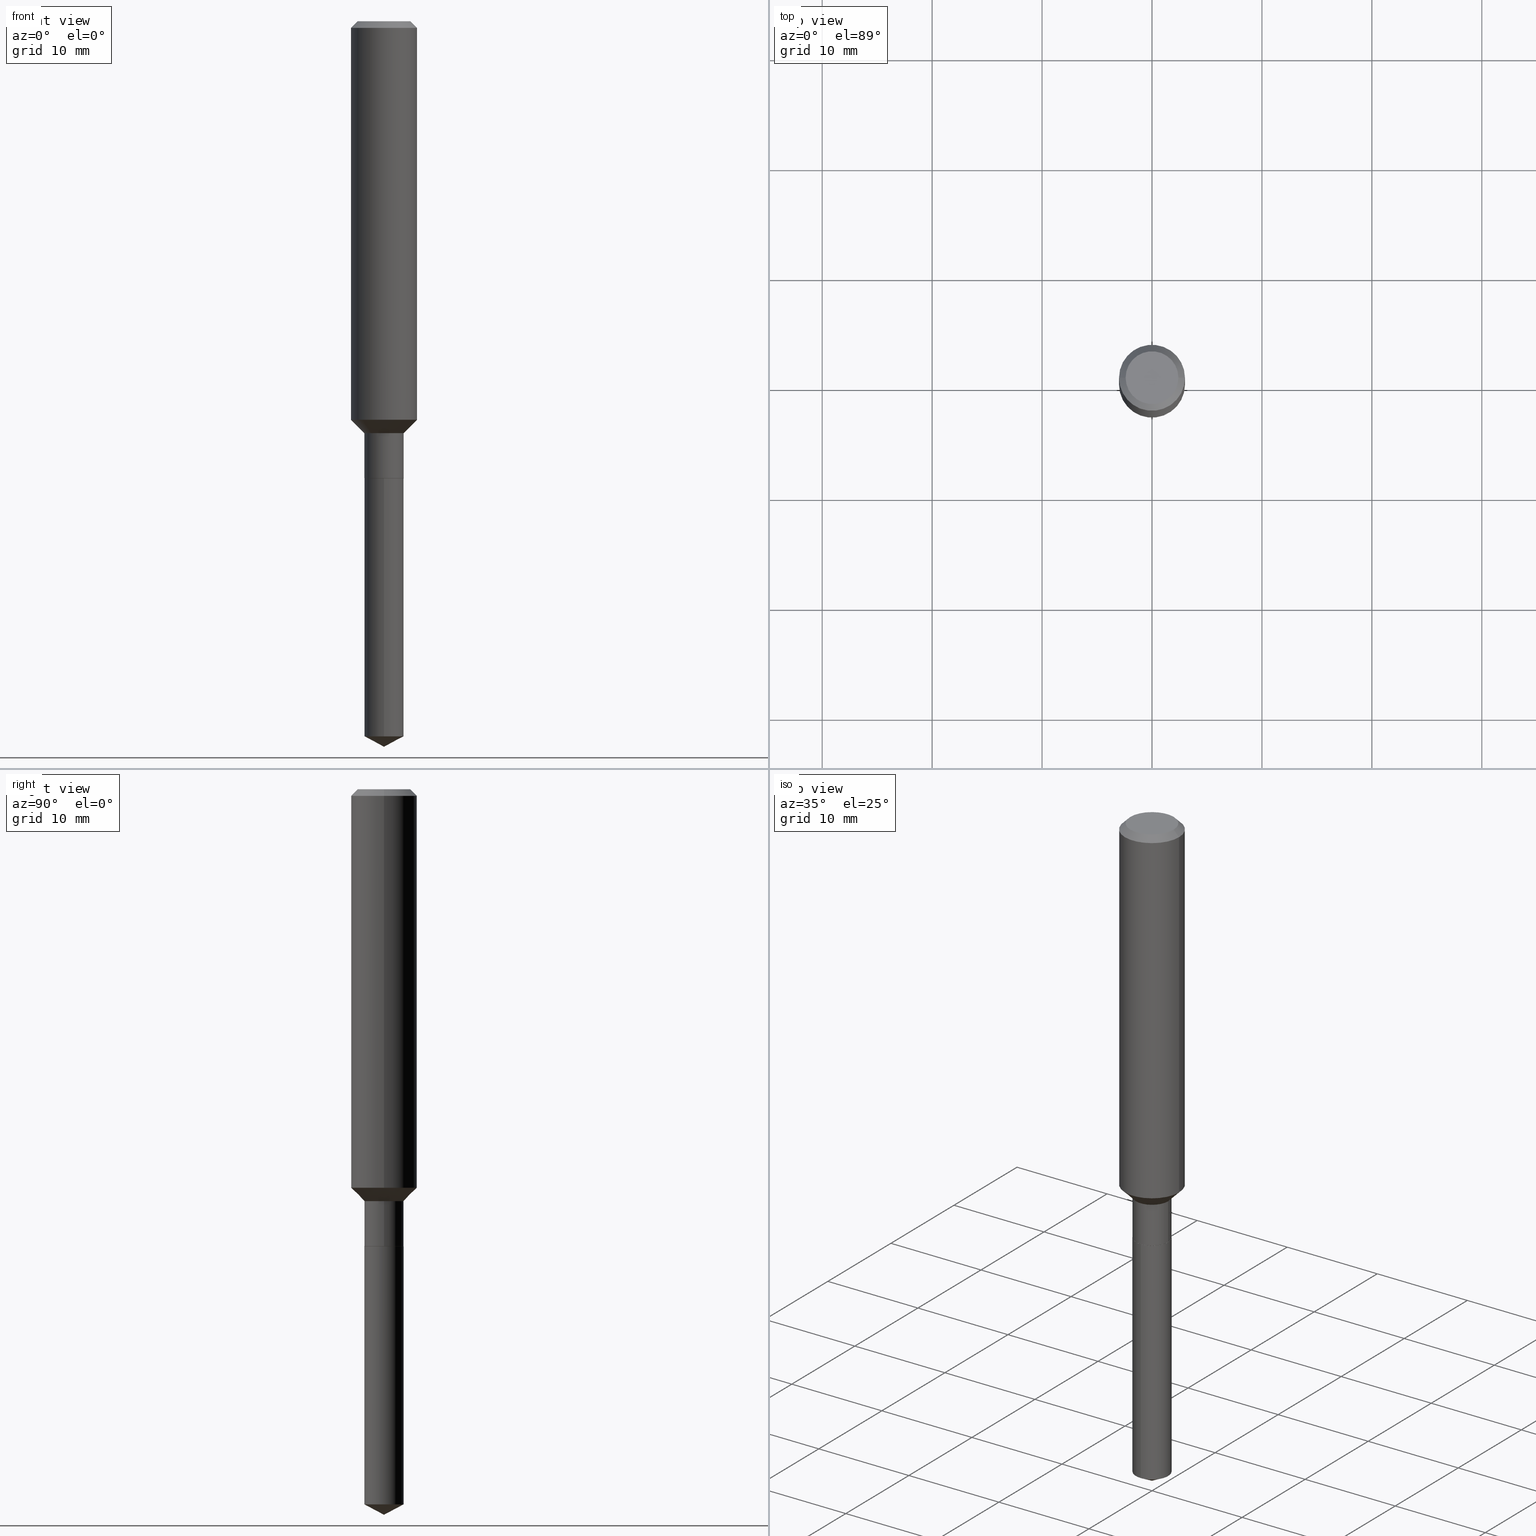
[diagram: canonical four-view strip — front | top / right | iso, engineering-drawing reading convention]
A machine part, canonical four-view strip (front | top / right | iso — engineering-drawing reading convention). The complete STEP part file that produces these views, byte-faithful:
ISO-10303-21;
HEADER;
FILE_DESCRIPTION (( 'STEP AP203' ),
    '1' );
FILE_NAME ('55162.STEP',
    '2024-04-24T16:40:28',
    ( '' ),
    ( '' ),
    'SwSTEP 2.0',
    'SolidWorks 2023',
    '' );
FILE_SCHEMA (( 'CONFIG_CONTROL_DESIGN' ));
ENDSEC;

DATA;
#1 = ORIENTED_EDGE ( 'NONE', *, *, #274, .F. ) ;
#2 = ADVANCED_FACE ( 'NONE', ( #320 ), #331, .T. ) ;
#3 = VECTOR ( 'NONE', #28, 39.37007874015748143 ) ;
#4 = EDGE_LOOP ( 'NONE', ( #465, #186, #378, #162 ) ) ;
#5 = DIRECTION ( 'NONE',  ( -2.445468806185136597E-29, 3.491481338843145583E-15, 1.000000000000000000 ) ) ;
#6 = CALENDAR_DATE ( 2024, 24, 4 ) ;
#7 = EDGE_LOOP ( 'NONE', ( #121, #195, #273, #340 ) ) ;
#8 = APPROVAL_STATUS ( 'not_yet_approved' ) ;
#9 = ORIENTED_EDGE ( 'NONE', *, *, #393, .T. ) ;
#10 = CARTESIAN_POINT ( 'NONE',  ( 0.000000000000000000, 0.000000000000000000, 0.000000000000000000 ) ) ;
#11 = VECTOR ( 'NONE', #53, 39.37007874015747433 ) ;
#12 = VECTOR ( 'NONE', #132, 39.37007874015748854 ) ;
#13 = APPROVAL_PERSON_ORGANIZATION ( #48, #77, #349 ) ;
#14 = EDGE_CURVE ( 'NONE', #222, #345, #437, .T. ) ;
#15 = VERTEX_POINT ( 'NONE', #311 ) ;
#16 =( LENGTH_UNIT ( ) NAMED_UNIT ( * ) SI_UNIT ( $, .METRE. ) );
#17 = ORIENTED_EDGE ( 'NONE', *, *, #230, .T. ) ;
#18 = EDGE_CURVE ( 'NONE', #380, #229, #482, .T. ) ;
#19 = CYLINDRICAL_SURFACE ( 'NONE', #136, 0.1181000000000000799 ) ;
#20 = DIRECTION ( 'NONE',  ( 0.7071067811865459074, -7.319954787623249734E-15, -0.7071067811865491270 ) ) ;
#21 = PERSON_AND_ORGANIZATION ( #25, #298 ) ;
#22 = DIRECTION ( 'NONE',  ( -2.445468806185136597E-29, 3.491481338843145583E-15, 1.000000000000000000 ) ) ;
#23 = DIRECTION ( 'NONE',  ( 1.000000000000000000, -6.982962677686266711E-15, 0.000000000000000000 ) ) ;
#24 = CARTESIAN_POINT ( 'NONE',  ( -0.07029999999999998750, -4.931487679331163902E-15, -1.474900000000000100 ) ) ;
#25 = PERSON ( 'UNSPECIFIED', 'UNSPECIFIED', 'UNSPECIFIED', ('UNSPECIFIED'), ('UNSPECIFIED'), ('UNSPECIFIED') ) ;
#26 = PRODUCT_DEFINITION_SHAPE ( 'NONE', 'NONE',  #411 ) ;
#27 = DIRECTION ( 'NONE',  ( -0.7071067811865459074, 2.468850131082240100E-15, -0.7071067811865491270 ) ) ;
#28 = DIRECTION ( 'NONE',  ( -0.7071067811865491270, 7.493145998870360471E-15, 0.7071067811865459074 ) ) ;
#29 = EDGE_CURVE ( 'NONE', #276, #231, #171, .T. ) ;
#30 = DIRECTION ( 'NONE',  ( 0.000000000000000000, 0.000000000000000000, 1.000000000000000000 ) ) ;
#31 = DIRECTION ( 'NONE',  ( -2.434697667680016346E-29, 3.506906222237609395E-15, 1.000000000000000000 ) ) ;
#32 = FACE_OUTER_BOUND ( 'NONE', #303, .T. ) ;
#33 = CIRCLE ( 'NONE', #113, 0.07030000000000000138 ) ;
#34 = CARTESIAN_POINT ( 'NONE',  ( 6.603013411620882309E-46, -9.427353171913646324E-32, -2.700101262760083747E-17 ) ) ;
#35 = ORIENTED_EDGE ( 'NONE', *, *, #293, .T. ) ;
#36 = CC_DESIGN_PERSON_AND_ORGANIZATION_ASSIGNMENT ( #286, #353, ( #290 ) ) ;
#37 = ORIENTED_EDGE ( 'NONE', *, *, #319, .T. ) ;
#38 = AXIS2_PLACEMENT_3D ( 'NONE', #90, #377, #347 ) ;
#39 = AXIS2_PLACEMENT_3D ( 'NONE', #102, #64, #436 ) ;
#40 = EDGE_LOOP ( 'NONE', ( #451, #37 ) ) ;
#41 = LINE ( 'NONE', #262, #268 ) ;
#42 = AXIS2_PLACEMENT_3D ( 'NONE', #413, #328, #488 ) ;
#43 = DATE_AND_TIME ( #263, #89 ) ;
#44 = ORIENTED_EDGE ( 'NONE', *, *, #84, .F. ) ;
#45 = ADVANCED_FACE ( 'NONE', ( #398 ), #124, .T. ) ;
#46 = ORIENTED_EDGE ( 'NONE', *, *, #219, .F. ) ;
#47 = ORIENTED_EDGE ( 'NONE', *, *, #29, .F. ) ;
#48 = PERSON_AND_ORGANIZATION ( #25, #298 ) ;
#49 = CARTESIAN_POINT ( 'NONE',  ( -0.07029999999999998750, 4.995115432393503418E-16, -3.458011368449198169E-30 ) ) ;
#50 = CIRCLE ( 'NONE', #185, 0.1181000000000001632 ) ;
#51 = EDGE_CURVE ( 'NONE', #199, #155, #267, .T. ) ;
#52 = EDGE_LOOP ( 'NONE', ( #73, #115, #86, #44 ) ) ;
#53 = DIRECTION ( 'NONE',  ( -6.165590087286837607E-15, -0.8829475928589267664, 0.4694715627858912499 ) ) ;
#54 = CC_DESIGN_PERSON_AND_ORGANIZATION_ASSIGNMENT ( #296, #266, ( #411 ) ) ;
#55 = LINE ( 'NONE', #316, #214 ) ;
#56 = DIRECTION ( 'NONE',  ( -1.000000000000000000, 6.982962677686266711E-15, 0.000000000000000000 ) ) ;
#57 = DIRECTION ( 'NONE',  ( -2.434697667680016346E-29, 3.506906222237609395E-15, 1.000000000000000000 ) ) ;
#58 = CALENDAR_DATE ( 2024, 24, 4 ) ;
#59 = DIRECTION ( 'NONE',  ( -6.982962677686265133E-15, -1.000000000000000000, 3.885985766236505386E-15 ) ) ;
#60 = CIRCLE ( 'NONE', #294, 0.07030000000000000138 ) ;
#61 = VECTOR ( 'NONE', #408, 39.37007874015748143 ) ;
#62 = DIRECTION ( 'NONE',  ( -2.445468806185136597E-29, 3.491481338843145583E-15, 1.000000000000000000 ) ) ;
#63 = FACE_OUTER_BOUND ( 'NONE', #125, .T. ) ;
#64 = DIRECTION ( 'NONE',  ( -2.445468806185136597E-29, 3.491481338843145583E-15, 1.000000000000000000 ) ) ;
#65 = DIRECTION ( 'NONE',  ( 1.000000000000000000, -6.982962677686265133E-15, 0.000000000000000000 ) ) ;
#66 = DIRECTION ( 'NONE',  ( -2.434697667680016346E-29, 3.506906222237609395E-15, 1.000000000000000000 ) ) ;
#67 = DATE_AND_TIME ( #120, #490 ) ;
#68 = DIRECTION ( 'NONE',  ( -2.445468806185136597E-29, 3.491481338843145583E-15, 1.000000000000000000 ) ) ;
#69 = CIRCLE ( 'NONE', #38, 0.09447999999999998066 ) ;
#70 = AXIS2_PLACEMENT_3D ( 'NONE', #441, #110, #76 ) ;
#71 = UNCERTAINTY_MEASURE_WITH_UNIT (LENGTH_MEASURE( 1.000000000000000082E-05 ), #96, 'distance_accuracy_value', 'NONE');
#72 = DIRECTION ( 'NONE',  ( 1.000000000000000000, -6.982962677686266711E-15, 0.000000000000000000 ) ) ;
#73 = ORIENTED_EDGE ( 'NONE', *, *, #424, .T. ) ;
#74 = MECHANICAL_CONTEXT ( 'NONE', #79, 'mechanical' ) ;
#75 = AXIS2_PLACEMENT_3D ( 'NONE', #34, #22, #447 ) ;
#76 = DIRECTION ( 'NONE',  ( 1.000000000000000000, -6.982962677686263555E-15, 0.000000000000000000 ) ) ;
#77 = APPROVAL ( #8, 'UNSPECIFIED' ) ;
#78 = DIRECTION ( 'NONE',  ( -1.000000000000000000, 6.982962677686265922E-15, -4.876176775795935793E-29 ) ) ;
#79 = APPLICATION_CONTEXT ( 'configuration controlled 3d designs of mechanical parts and assemblies' ) ;
#80 = VERTEX_POINT ( 'NONE', #279 ) ;
#81 = CARTESIAN_POINT ( 'NONE',  ( -8.951126629912985075E-28, 1.289814761026329833E-13, 36.77207874015748246 ) ) ;
#82 = AXIS2_PLACEMENT_3D ( 'NONE', #239, #326, #477 ) ;
#83 = ORIENTED_EDGE ( 'NONE', *, *, #249, .F. ) ;
#84 = EDGE_CURVE ( 'NONE', #118, #461, #288, .T. ) ;
#85 = COORDINATED_UNIVERSAL_TIME_OFFSET ( 5, 0, .BEHIND. ) ;
#86 = ORIENTED_EDGE ( 'NONE', *, *, #393, .F. ) ;
#87 = CARTESIAN_POINT ( 'NONE',  ( 0.000000000000000000, 0.000000000000000000, 0.000000000000000000 ) ) ;
#88 = VERTEX_POINT ( 'NONE', #24 ) ;
#89 = LOCAL_TIME ( 12, 40, 28.00000000000000000, #384 ) ;
#90 = CARTESIAN_POINT ( 'NONE',  ( 6.603013411620882309E-46, -9.427353171913646324E-32, -2.700101262760083747E-17 ) ) ;
#91 = ORIENTED_EDGE ( 'NONE', *, *, #84, .T. ) ;
#92 = DIRECTION ( 'NONE',  ( 2.445468806185136597E-29, -3.491481338843145583E-15, -1.000000000000000000 ) ) ;
#93 = CARTESIAN_POINT ( 'NONE',  ( 0.1180999999999999966, -8.926936027602933910E-16, -0.02362000000000014435 ) ) ;
#94 = DIRECTION ( 'NONE',  ( -1.000000000000000000, 6.982962677686266711E-15, 0.000000000000000000 ) ) ;
#95 = ORIENTED_EDGE ( 'NONE', *, *, #14, .F. ) ;
#96 =( CONVERSION_BASED_UNIT ( 'INCH', #203 ) LENGTH_UNIT ( ) NAMED_UNIT ( #252 ) );
#97 = FACE_OUTER_BOUND ( 'NONE', #426, .T. ) ;
#98 = CIRCLE ( 'NONE', #374, 0.1180999999999999966 ) ;
#99 = CARTESIAN_POINT ( 'NONE',  ( 0.07029999999999998750, -5.640488102901100489E-15, -1.474900000000000100 ) ) ;
#100 = COORDINATED_UNIVERSAL_TIME_OFFSET ( 5, 0, .BEHIND. ) ;
#101 = DIRECTION ( 'NONE',  ( -2.434697667680016346E-29, 3.506906222237609395E-15, 1.000000000000000000 ) ) ;
#102 = CARTESIAN_POINT ( 'NONE',  ( 3.606821942242458368E-29, -5.149585826659756331E-15, -1.474900000000000100 ) ) ;
#103 = CARTESIAN_POINT ( 'NONE',  ( -0.07029999999999998750, -4.650074283420406482E-15, -1.474900000000000100 ) ) ;
#104 = EDGE_CURVE ( 'NONE', #461, #345, #55, .T. ) ;
#105 = APPROVAL ( #205, 'UNSPECIFIED' ) ;
#106 = CIRCLE ( 'NONE', #269, 0.07029999999999998750 ) ;
#107 = APPROVAL_PERSON_ORGANIZATION ( #140, #105, #470 ) ;
#108 = ORIENTED_EDGE ( 'NONE', *, *, #277, .F. ) ;
#109 = EDGE_CURVE ( 'NONE', #15, #148, #204, .T. ) ;
#110 = DIRECTION ( 'NONE',  ( -2.445468806185136597E-29, 3.491481338843145583E-15, 1.000000000000000000 ) ) ;
#111 = FACE_OUTER_BOUND ( 'NONE', #52, .T. ) ;
#112 = CARTESIAN_POINT ( 'NONE',  ( 3.301506705810441154E-46, -4.713676585956823162E-32, -1.350050631380041873E-17 ) ) ;
#113 = AXIS2_PLACEMENT_3D ( 'NONE', #406, #212, #65 ) ;
#114 = CARTESIAN_POINT ( 'NONE',  ( -0.1180999999999999966, -1.693429933010585093E-15, -0.02362000000000014435 ) ) ;
#115 = ORIENTED_EDGE ( 'NONE', *, *, #274, .T. ) ;
#116 = DIRECTION ( 'NONE',  ( 2.438088387897960049E-29, -3.491481338843145188E-15, -1.000000000000000000 ) ) ;
#117 = APPROVAL ( #299, 'UNSPECIFIED' ) ;
#118 = VERTEX_POINT ( 'NONE', #131 ) ;
#119 = AXIS2_PLACEMENT_3D ( 'NONE', #444, #101, #368 ) ;
#120 = CALENDAR_DATE ( 2024, 24, 4 ) ;
#121 = ORIENTED_EDGE ( 'NONE', *, *, #18, .F. ) ;
#122 = EDGE_CURVE ( 'NONE', #155, #199, #33, .T. ) ;
#123 = CARTESIAN_POINT ( 'NONE',  ( -0.07030000000000000138, -4.931487679331163902E-15, -1.636100000000000110 ) ) ;
#124 = CYLINDRICAL_SURFACE ( 'NONE', #312, 0.07030000000000000138 ) ;
#125 = EDGE_LOOP ( 'NONE', ( #147, #17, #371, #47 ) ) ;
#126 = CYLINDRICAL_SURFACE ( 'NONE', #455, 0.07029999999999998750 ) ;
#127 = APPLICATION_PROTOCOL_DEFINITION ( 'international standard', 'config_control_design', 1994, #79 ) ;
#128 = DIRECTION ( 'NONE',  ( -2.445468806185136597E-29, 3.491481338843145583E-15, 1.000000000000000000 ) ) ;
#129 = CARTESIAN_POINT ( 'NONE',  ( 5.776197320209328408E-31, -8.246878922347560526E-17, -0.02362000000000014435 ) ) ;
#130 = ADVANCED_FACE ( 'NONE', ( #400 ), #210, .F. ) ;
#131 = CARTESIAN_POINT ( 'NONE',  ( 0.07029999999999998750, -5.640488102901100489E-15, -1.474900000000000100 ) ) ;
#132 = DIRECTION ( 'NONE',  ( 6.273719981627766865E-15, 0.8829475928589298750, 0.4694715627858848661 ) ) ;
#133 = CARTESIAN_POINT ( 'NONE',  ( -0.1181000000000000799, 8.391509709326788873E-16, -5.809262341591047988E-30 ) ) ;
#134 = SHAPE_DEFINITION_REPRESENTATION ( #26, #381 ) ;
#135 = CYLINDRICAL_SURFACE ( 'NONE', #119, 0.07030000000000000138 ) ;
#136 = AXIS2_PLACEMENT_3D ( 'NONE', #10, #5, #458 ) ;
#137 = VECTOR ( 'NONE', #27, 39.37007874015748143 ) ;
#138 = LINE ( 'NONE', #248, #61 ) ;
#139 = ADVANCED_FACE ( 'NONE', ( #176 ), #325, .F. ) ;
#140 = PERSON_AND_ORGANIZATION ( #25, #298 ) ;
#141 = DIRECTION ( 'NONE',  ( -2.445468806185136597E-29, 3.491481338843145583E-15, 1.000000000000000000 ) ) ;
#142 = ORIENTED_EDGE ( 'NONE', *, *, #342, .F. ) ;
#143 = AXIS2_PLACEMENT_3D ( 'NONE', #478, #250, #322 ) ;
#144 = CIRCLE ( 'NONE', #75, 0.09447999999999998066 ) ;
#145 = EDGE_CURVE ( 'NONE', #80, #222, #69, .T. ) ;
#146 = EDGE_LOOP ( 'NONE', ( #1, #389, #91, #278 ) ) ;
#147 = ORIENTED_EDGE ( 'NONE', *, *, #261, .T. ) ;
#148 = VERTEX_POINT ( 'NONE', #154 ) ;
#149 = AXIS2_PLACEMENT_3D ( 'NONE', #308, #468, #318 ) ;
#150 = PERSON_AND_ORGANIZATION_ROLE ( 'design_owner' ) ;
#151 = ORIENTED_EDGE ( 'NONE', *, *, #277, .T. ) ;
#152 = DIRECTION ( 'NONE',  ( -2.445468806185136597E-29, 3.491481338843145583E-15, 1.000000000000000000 ) ) ;
#153 = ADVANCED_FACE ( 'NONE', ( #237 ), #338, .F. ) ;
#154 = CARTESIAN_POINT ( 'NONE',  ( -0.06980000000000000093, -5.215550302416030944E-15, -1.636600000000000055 ) ) ;
#155 = VERTEX_POINT ( 'NONE', #123 ) ;
#156 = FACE_OUTER_BOUND ( 'NONE', #217, .T. ) ;
#157 = DIRECTION ( 'NONE',  ( 1.000000000000000000, 0.000000000000000000, 0.000000000000000000 ) ) ;
#158 = EDGE_CURVE ( 'NONE', #155, #88, #460, .T. ) ;
#159 = AXIS2_PLACEMENT_3D ( 'NONE', #81, #341, #225 ) ;
#160 = ORIENTED_EDGE ( 'NONE', *, *, #391, .T. ) ;
#161 = CC_DESIGN_PERSON_AND_ORGANIZATION_ASSIGNMENT ( #190, #150, ( #170 ) ) ;
#162 = ORIENTED_EDGE ( 'NONE', *, *, #387, .F. ) ;
#163 = CARTESIAN_POINT ( 'NONE',  ( 0.09447999999999998066, -7.704367267948738690E-16, -2.700101262759583929E-17 ) ) ;
#164 = DIRECTION ( 'NONE',  ( -2.438088387897960049E-29, 3.491481338843145188E-15, 1.000000000000000000 ) ) ;
#165 = ORIENTED_EDGE ( 'NONE', *, *, #183, .F. ) ;
#166 = DIRECTION ( 'NONE',  ( -6.982962677686266711E-15, -1.000000000000000000, 0.000000000000000000 ) ) ;
#167 = DATE_TIME_ROLE ( 'classification_date' ) ;
#168 = CARTESIAN_POINT ( 'NONE',  ( -0.1180999999999999966, 7.422191030112725094E-16, -0.02362000000000014435 ) ) ;
#169 = AXIS2_PLACEMENT_3D ( 'NONE', #427, #200, #166 ) ;
#170 = PRODUCT ( '55162', '55162', '', ( #74 ) ) ;
#171 = LINE ( 'NONE', #469, #430 ) ;
#172 = LINE ( 'NONE', #479, #12 ) ;
#173 = ORIENTED_EDGE ( 'NONE', *, *, #122, .F. ) ;
#174 = CARTESIAN_POINT ( 'NONE',  ( -4.909022762412819371E-16, -0.07030000000000893867, -2.560620826954198126 ) ) ;
#175 = EDGE_LOOP ( 'NONE', ( #165, #35, #151, #173 ) ) ;
#176 = FACE_OUTER_BOUND ( 'NONE', #305, .T. ) ;
#177 = DATE_AND_TIME ( #58, #216 ) ;
#178 = CYLINDRICAL_SURFACE ( 'NONE', #215, 0.1181000000000000799 ) ;
#179 = AXIS2_PLACEMENT_3D ( 'NONE', #409, #364, #361 ) ;
#180 = CARTESIAN_POINT ( 'NONE',  ( 0.1181000000000001632, -5.807380910897803330E-15, -1.427100000000000257 ) ) ;
#181 = DATE_TIME_ROLE ( 'creation_date' ) ;
#182 = FACE_OUTER_BOUND ( 'NONE', #146, .T. ) ;
#183 = EDGE_CURVE ( 'NONE', #148, #155, #420, .T. ) ;
#184 = AXIS2_PLACEMENT_3D ( 'NONE', #396, #62, #476 ) ;
#185 = AXIS2_PLACEMENT_3D ( 'NONE', #415, #218, #405 ) ;
#186 = ORIENTED_EDGE ( 'NONE', *, *, #14, .T. ) ;
#187 = DIRECTION ( 'NONE',  ( -2.445468806185136597E-29, 3.491481338843145583E-15, 1.000000000000000000 ) ) ;
#188 = ORIENTED_EDGE ( 'NONE', *, *, #51, .F. ) ;
#189 = PRODUCT_RELATED_PRODUCT_CATEGORY ( 'detail', '', ( #170 ) ) ;
#190 = PERSON_AND_ORGANIZATION ( #25, #298 ) ;
#191 = ADVANCED_FACE ( 'NONE', ( #265 ), #373, .T. ) ;
#192 = AXIS2_PLACEMENT_3D ( 'NONE', #410, #404, #324 ) ;
#193 = ORIENTED_EDGE ( 'NONE', *, *, #104, .F. ) ;
#194 = CARTESIAN_POINT ( 'NONE',  ( -4.909022762413044196E-16, -0.07030000000000570515, -1.636599999999999611 ) ) ;
#195 = ORIENTED_EDGE ( 'NONE', *, *, #448, .T. ) ;
#196 = EDGE_CURVE ( 'NONE', #300, #276, #466, .T. ) ;
#197 = CONICAL_SURFACE ( 'NONE', #254, 0.06980000000000000093, 0.7853981633975507526 ) ;
#198 = ORIENTED_EDGE ( 'NONE', *, *, #454, .F. ) ;
#199 = VERTEX_POINT ( 'NONE', #425 ) ;
#200 = DIRECTION ( 'NONE',  ( -2.434697667680016346E-29, 3.506906222237609395E-15, 1.000000000000000000 ) ) ;
#201 = ADVANCED_FACE ( 'NONE', ( #344 ), #19, .T. ) ;
#202 = FACE_OUTER_BOUND ( 'NONE', #4, .T. ) ;
#203 = LENGTH_MEASURE_WITH_UNIT ( LENGTH_MEASURE( 0.02539999999999999897 ), #16 );
#204 = CIRCLE ( 'NONE', #143, 0.06980000000000000093 ) ;
#205 = APPROVAL_STATUS ( 'not_yet_approved' ) ;
#206 = DIRECTION ( 'NONE',  ( -2.445468806185136597E-29, 3.491481338843145583E-15, 1.000000000000000000 ) ) ;
#207 = ADVANCED_FACE ( 'NONE', ( #156 ), #197, .T. ) ;
#208 = AXIS2_PLACEMENT_3D ( 'NONE', #283, #92, #56 ) ;
#209 = DESIGN_CONTEXT ( 'detailed design', #302, 'design' ) ;
#210 = PLANE ( 'NONE',  #179 ) ;
#211 = CARTESIAN_POINT ( 'NONE',  ( 0.000000000000000000, 0.000000000000000000, 0.000000000000000000 ) ) ;
#212 = DIRECTION ( 'NONE',  ( -2.445468806185136597E-29, 3.491481338843145583E-15, 1.000000000000000000 ) ) ;
#213 = DIRECTION ( 'NONE',  ( 1.000000000000000000, -6.982962677686266711E-15, 4.876176775795936353E-29 ) ) ;
#214 = VECTOR ( 'NONE', #246, 39.37007874015748143 ) ;
#215 = AXIS2_PLACEMENT_3D ( 'NONE', #486, #68, #213 ) ;
#216 = LOCAL_TIME ( 12, 40, 28.00000000000000000, #100 ) ;
#217 = EDGE_LOOP ( 'NONE', ( #271, #459, #188, #108 ) ) ;
#218 = DIRECTION ( 'NONE',  ( -2.445468806185136597E-29, 3.491481338843145583E-15, 1.000000000000000000 ) ) ;
#219 = EDGE_CURVE ( 'NONE', #402, #276, #416, .T. ) ;
#220 = ADVANCED_FACE ( 'NONE', ( #272 ), #390, .T. ) ;
#221 = VECTOR ( 'NONE', #314, 39.37007874015748143 ) ;
#222 = VERTEX_POINT ( 'NONE', #163 ) ;
#223 = ORIENTED_EDGE ( 'NONE', *, *, #145, .T. ) ;
#224 = ORIENTED_EDGE ( 'NONE', *, *, #145, .F. ) ;
#225 = DIRECTION ( 'NONE',  ( -6.982962677686265922E-15, -1.000000000000000000, 3.541896320645553375E-15 ) ) ;
#226 = VECTOR ( 'NONE', #346, 39.37007874015748143 ) ;
#227 = AXIS2_PLACEMENT_3D ( 'NONE', #257, #187, #72 ) ;
#228 = ORIENTED_EDGE ( 'NONE', *, *, #158, .T. ) ;
#229 = VERTEX_POINT ( 'NONE', #114 ) ;
#230 = EDGE_CURVE ( 'NONE', #402, #433, #41, .T. ) ;
#231 = VERTEX_POINT ( 'NONE', #194 ) ;
#232 = DIRECTION ( 'NONE',  ( -2.445468806185136597E-29, 3.491481338843145583E-15, 1.000000000000000000 ) ) ;
#233 = VECTOR ( 'NONE', #20, 39.37007874015748143 ) ;
#234 = DATE_AND_TIME ( #270, #333 ) ;
#235 = ORIENTED_EDGE ( 'NONE', *, *, #391, .F. ) ;
#236 = CARTESIAN_POINT ( 'NONE',  ( -0.06980000000000000093, -5.218199529590142145E-15, -1.636600000000000055 ) ) ;
#237 = FACE_OUTER_BOUND ( 'NONE', #457, .T. ) ;
#238 = ORIENTED_EDGE ( 'NONE', *, *, #18, .T. ) ;
#239 = CARTESIAN_POINT ( 'NONE',  ( 4.002254248202594022E-29, -5.714158359150691884E-15, -1.636600000000000055 ) ) ;
#240 = DIRECTION ( 'NONE',  ( -2.445468806185136877E-29, 3.491481338843145188E-15, 1.000000000000000000 ) ) ;
#241 = ORIENTED_EDGE ( 'NONE', *, *, #196, .T. ) ;
#242 = LINE ( 'NONE', #168, #137 ) ;
#243 = APPROVAL_DATE_TIME ( #234, #105 ) ;
#244 = CARTESIAN_POINT ( 'NONE',  ( 0.1180999999999999966, -9.071566814582237199E-16, -0.02362000000000014435 ) ) ;
#245 =( NAMED_UNIT ( * ) PLANE_ANGLE_UNIT ( ) SI_UNIT ( $, .RADIAN. ) );
#246 = DIRECTION ( 'NONE',  ( -2.445468806185136877E-29, 3.491481338843145188E-15, 1.000000000000000000 ) ) ;
#247 = PERSON_AND_ORGANIZATION ( #25, #298 ) ;
#248 = CARTESIAN_POINT ( 'NONE',  ( 0.07029999999999998750, -4.909022762413444543E-16, 3.427952273384542436E-30 ) ) ;
#249 = EDGE_CURVE ( 'NONE', #345, #229, #313, .T. ) ;
#250 = DIRECTION ( 'NONE',  ( -2.445468806185136597E-29, 3.491481338843145583E-15, 1.000000000000000000 ) ) ;
#251 = CARTESIAN_POINT ( 'NONE',  ( 6.325344540632682081E-29, -9.110942365373309551E-15, -2.597999999999999865 ) ) ;
#252 = DIMENSIONAL_EXPONENTS ( 1.000000000000000000, 0.000000000000000000, 0.000000000000000000, 0.000000000000000000, 0.000000000000000000, 0.000000000000000000, 0.000000000000000000 ) ;
#253 = VECTOR ( 'NONE', #388, 39.37007874015748143 ) ;
#254 = AXIS2_PLACEMENT_3D ( 'NONE', #304, #152, #382 ) ;
#255 = CARTESIAN_POINT ( 'NONE',  ( 4.995115432394128591E-16, 0.07029999999999105020, -2.560620826954198126 ) ) ;
#256 = CC_DESIGN_DATE_AND_TIME_ASSIGNMENT ( #177, #167, ( #370 ) ) ;
#257 = CARTESIAN_POINT ( 'NONE',  ( 3.606821942242458368E-29, -5.149585826659756331E-15, -1.474900000000000100 ) ) ;
#258 = PERSON_AND_ORGANIZATION ( #25, #298 ) ;
#259 = ORIENTED_EDGE ( 'NONE', *, *, #424, .F. ) ;
#260 = VECTOR ( 'NONE', #355, 39.37007874015748143 ) ;
#261 = EDGE_CURVE ( 'NONE', #276, #402, #412, .T. ) ;
#262 = CARTESIAN_POINT ( 'NONE',  ( 4.995115432393903765E-16, 0.07029999999999428373, -1.636600000000000277 ) ) ;
#263 = CALENDAR_DATE ( 2024, 24, 4 ) ;
#264 = EDGE_LOOP ( 'NONE', ( #235, #241, #46 ) ) ;
#265 = FACE_OUTER_BOUND ( 'NONE', #419, .T. ) ;
#266 = PERSON_AND_ORGANIZATION_ROLE ( 'creator' ) ;
#267 = CIRCLE ( 'NONE', #184, 0.07030000000000000138 ) ;
#268 = VECTOR ( 'NONE', #352, 39.37007874015748143 ) ;
#269 = AXIS2_PLACEMENT_3D ( 'NONE', #379, #141, #292 ) ;
#270 = CALENDAR_DATE ( 2024, 24, 4 ) ;
#271 = ORIENTED_EDGE ( 'NONE', *, *, #109, .T. ) ;
#272 = FACE_OUTER_BOUND ( 'NONE', #471, .T. ) ;
#273 = ORIENTED_EDGE ( 'NONE', *, *, #104, .T. ) ;
#274 = EDGE_CURVE ( 'NONE', #88, #380, #354, .T. ) ;
#275 = CARTESIAN_POINT ( 'NONE',  ( 0.000000000000000000, 0.000000000000000000, 0.000000000000000000 ) ) ;
#276 = VERTEX_POINT ( 'NONE', #174 ) ;
#277 = EDGE_CURVE ( 'NONE', #15, #199, #483, .T. ) ;
#278 = ORIENTED_EDGE ( 'NONE', *, *, #448, .F. ) ;
#279 = CARTESIAN_POINT ( 'NONE',  ( -0.09447999999999998066, 7.009847083995354710E-16, -2.700101262760559836E-17 ) ) ;
#280 = AXIS2_PLACEMENT_3D ( 'NONE', #367, #164, #432 ) ;
#281 = ORIENTED_EDGE ( 'NONE', *, *, #481, .T. ) ;
#282 = CIRCLE ( 'NONE', #70, 0.1181000000000001632 ) ;
#283 = CARTESIAN_POINT ( 'NONE',  ( 5.776197320209328408E-31, -8.246878922347560526E-17, -0.02362000000000014435 ) ) ;
#284 = DIRECTION ( 'NONE',  ( -2.434697667680016346E-29, 3.506906222237609395E-15, 1.000000000000000000 ) ) ;
#285 = CARTESIAN_POINT ( 'NONE',  ( -0.1181000000000001632, -4.143542047730375293E-15, -1.427100000000000257 ) ) ;
#286 = PERSON_AND_ORGANIZATION ( #25, #298 ) ;
#287 = CARTESIAN_POINT ( 'NONE',  ( 0.06980000000000000093, -6.201569154053193825E-15, -1.636600000000000055 ) ) ;
#288 = LINE ( 'NONE', #99, #260 ) ;
#289 = DIRECTION ( 'NONE',  ( -2.434697667680016346E-29, 3.506906222237609395E-15, 1.000000000000000000 ) ) ;
#290 = PRODUCT_DEFINITION_FORMATION_WITH_SPECIFIED_SOURCE ( 'ANY', '', #170, .NOT_KNOWN. ) ;
#291 = DIRECTION ( 'NONE',  ( -6.982962677686266711E-15, -1.000000000000000000, 0.000000000000000000 ) ) ;
#292 = DIRECTION ( 'NONE',  ( 1.000000000000000000, -6.982962677686266711E-15, 0.000000000000000000 ) ) ;
#293 = EDGE_CURVE ( 'NONE', #148, #15, #418, .T. ) ;
#294 = AXIS2_PLACEMENT_3D ( 'NONE', #472, #66, #59 ) ;
#295 = EDGE_CURVE ( 'NONE', #231, #433, #401, .T. ) ;
#296 = PERSON_AND_ORGANIZATION ( #25, #298 ) ;
#297 = ORIENTED_EDGE ( 'NONE', *, *, #196, .F. ) ;
#298 = ORGANIZATION ( 'UNSPECIFIED', 'UNSPECIFIED', '' ) ;
#299 = APPROVAL_STATUS ( 'not_yet_approved' ) ;
#300 = VERTEX_POINT ( 'NONE', #251 ) ;
#301 = ADVANCED_FACE ( 'NONE', ( #358 ), #357, .T. ) ;
#302 = APPLICATION_CONTEXT ( 'configuration controlled 3d designs of mechanical parts and assemblies' ) ;
#303 = EDGE_LOOP ( 'NONE', ( #9, #238, #83, #193 ) ) ;
#304 = CARTESIAN_POINT ( 'NONE',  ( 4.002254248202594022E-29, -5.714158359150691884E-15, -1.636600000000000055 ) ) ;
#305 = EDGE_LOOP ( 'NONE', ( #467, #423 ) ) ;
#306 = ORIENTED_EDGE ( 'NONE', *, *, #334, .T. ) ;
#307 = COORDINATED_UNIVERSAL_TIME_OFFSET ( 5, 0, .BEHIND. ) ;
#308 = CARTESIAN_POINT ( 'NONE',  ( 5.776197320209328408E-31, -8.246878922347560526E-17, -0.02362000000000014435 ) ) ;
#309 = EDGE_LOOP ( 'NONE', ( #449, #348, #395, #336 ) ) ;
#310 = FACE_OUTER_BOUND ( 'NONE', #335, .T. ) ;
#311 = CARTESIAN_POINT ( 'NONE',  ( 0.06980000000000000093, -6.201569154053193825E-15, -1.636600000000000055 ) ) ;
#312 = AXIS2_PLACEMENT_3D ( 'NONE', #446, #57, #442 ) ;
#313 = CIRCLE ( 'NONE', #149, 0.1180999999999999966 ) ;
#314 = DIRECTION ( 'NONE',  ( 0.7071067811866199593, -2.468850131083015945E-15, 0.7071067811864750752 ) ) ;
#315 = DATE_AND_TIME ( #6, #422 ) ;
#316 = CARTESIAN_POINT ( 'NONE',  ( 0.1181000000000000799, -8.246878922347486570E-16, 5.758764772215004644E-30 ) ) ;
#317 = APPROVAL_DATE_TIME ( #67, #77 ) ;
#318 = DIRECTION ( 'NONE',  ( 1.000000000000000000, -6.982962677686266711E-15, 0.000000000000000000 ) ) ;
#319 = EDGE_CURVE ( 'NONE', #433, #231, #60, .T. ) ;
#320 = FACE_OUTER_BOUND ( 'NONE', #264, .T. ) ;
#321 = MANIFOLD_SOLID_BREP ( 'Body-Move/Copy2[1]', #383 ) ;
#322 = DIRECTION ( 'NONE',  ( 1.000000000000000000, -6.982962677686271444E-15, 0.000000000000000000 ) ) ;
#323 = SECURITY_CLASSIFICATION_LEVEL ( 'unclassified' ) ;
#324 = DIRECTION ( 'NONE',  ( 1.000000000000000000, -6.982962677686271444E-15, 0.000000000000000000 ) ) ;
#325 = PLANE ( 'NONE',  #280 ) ;
#326 = DIRECTION ( 'NONE',  ( -2.434697667680016346E-29, 3.506906222237609395E-15, 1.000000000000000000 ) ) ;
#327 = PERSON_AND_ORGANIZATION_ROLE ( 'design_supplier' ) ;
#328 = DIRECTION ( 'NONE',  ( -2.445468806185136597E-29, 3.491481338843145583E-15, 1.000000000000000000 ) ) ;
#329 = ADVANCED_FACE ( 'NONE', ( #63 ), #135, .T. ) ;
#330 = MANIFOLD_SOLID_BREP ( 'Body-Move/Copy2[2]', #450 ) ;
#331 = CONICAL_SURFACE ( 'NONE', #356, 74.04434902938369589, 1.082104136236487379 ) ;
#332 = AXIS2_PLACEMENT_3D ( 'NONE', #397, #399, #362 ) ;
#333 = LOCAL_TIME ( 12, 40, 28.00000000000000000, #85 ) ;
#334 = EDGE_CURVE ( 'NONE', #222, #80, #144, .T. ) ;
#335 = EDGE_LOOP ( 'NONE', ( #95, #224, #428, #281 ) ) ;
#336 = ORIENTED_EDGE ( 'NONE', *, *, #319, .F. ) ;
#337 = APPROVAL_DATE_TIME ( #43, #117 ) ;
#338 = PLANE ( 'NONE',  #473 ) ;
#339 = AXIS2_PLACEMENT_3D ( 'NONE', #87, #232, #350 ) ;
#340 = ORIENTED_EDGE ( 'NONE', *, *, #481, .F. ) ;
#341 = DIRECTION ( 'NONE',  ( -2.434697667680016346E-29, 3.506906222237609395E-15, 1.000000000000000000 ) ) ;
#342 = EDGE_CURVE ( 'NONE', #199, #118, #138, .T. ) ;
#343 = ORIENTED_EDGE ( 'NONE', *, *, #261, .F. ) ;
#344 = FACE_OUTER_BOUND ( 'NONE', #7, .T. ) ;
#345 = VERTEX_POINT ( 'NONE', #244 ) ;
#346 = DIRECTION ( 'NONE',  ( -2.445468806185136877E-29, 3.491481338843145188E-15, 1.000000000000000000 ) ) ;
#347 = DIRECTION ( 'NONE',  ( 1.000000000000000000, -6.982962677686267499E-15, 4.875432709231658792E-29 ) ) ;
#348 = ORIENTED_EDGE ( 'NONE', *, *, #219, .T. ) ;
#349 = APPROVAL_ROLE ( '' ) ;
#350 = DIRECTION ( 'NONE',  ( 1.000000000000000000, -6.982962677686266711E-15, 4.876176775795935793E-29 ) ) ;
#351 = ORIENTED_EDGE ( 'NONE', *, *, #51, .T. ) ;
#352 = DIRECTION ( 'NONE',  ( -2.434697667680016346E-29, 3.506906222237609395E-15, 1.000000000000000000 ) ) ;
#353 = PERSON_AND_ORGANIZATION_ROLE ( 'creator' ) ;
#354 = LINE ( 'NONE', #103, #3 ) ;
#355 = DIRECTION ( 'NONE',  ( 0.7071067811865491270, -2.468850131082274021E-15, 0.7071067811865459074 ) ) ;
#356 = AXIS2_PLACEMENT_3D ( 'NONE', #480, #284, #407 ) ;
#357 = CONICAL_SURFACE ( 'NONE', #192, 0.06980000000000000093, 0.7853981633975507526 ) ;
#358 = FACE_OUTER_BOUND ( 'NONE', #175, .T. ) ;
#359 = CC_DESIGN_SECURITY_CLASSIFICATION ( #370, ( #290 ) ) ;
#360 = ADVANCED_FACE ( 'NONE', ( #97 ), #126, .T. ) ;
#361 = DIRECTION ( 'NONE',  ( 6.982962677686265922E-15, 1.000000000000000000, -3.506906222237609395E-15 ) ) ;
#362 = DIRECTION ( 'NONE',  ( 1.000000000000000000, -6.982962677686271444E-15, 0.000000000000000000 ) ) ;
#363 = ADVANCED_FACE ( 'NONE', ( #202 ), #485, .T. ) ;
#364 = DIRECTION ( 'NONE',  ( 2.434697667680016066E-29, -3.506906222237609395E-15, -1.000000000000000000 ) ) ;
#365 = DIRECTION ( 'NONE',  ( 1.000000000000000000, -6.982962677686266711E-15, 4.876176775795935793E-29 ) ) ;
#366 = ADVANCED_FACE ( 'NONE', ( #32 ), #178, .T. ) ;
#367 = CARTESIAN_POINT ( 'NONE',  ( 4.002254248202594022E-29, -5.714158359150691884E-15, -1.636600000000000055 ) ) ;
#368 = DIRECTION ( 'NONE',  ( -6.982962677686265133E-15, -1.000000000000000000, 3.885985766236505386E-15 ) ) ;
#369 = CC_DESIGN_APPROVAL ( #117, ( #411 ) ) ;
#370 = SECURITY_CLASSIFICATION ( '', '', #323 ) ;
#371 = ORIENTED_EDGE ( 'NONE', *, *, #295, .F. ) ;
#372 = CARTESIAN_POINT ( 'NONE',  ( 4.995115432394131549E-16, 0.07029999999999428373, -1.636600000000000277 ) ) ;
#373 = CONICAL_SURFACE ( 'NONE', #159, 74.04434902938369589, 1.082104136236487379 ) ;
#374 = AXIS2_PLACEMENT_3D ( 'NONE', #487, #128, #23 ) ;
#375 = ADVANCED_FACE ( 'NONE', ( #310 ), #421, .T. ) ;
#376 = CC_DESIGN_APPROVAL ( #105, ( #370 ) ) ;
#377 = DIRECTION ( 'NONE',  ( -2.445468806185136597E-29, 3.491481338843145583E-15, 1.000000000000000000 ) ) ;
#378 = ORIENTED_EDGE ( 'NONE', *, *, #249, .T. ) ;
#379 = CARTESIAN_POINT ( 'NONE',  ( 3.606821942242458368E-29, -5.149585826659756331E-15, -1.474900000000000100 ) ) ;
#380 = VERTEX_POINT ( 'NONE', #285 ) ;
#381 = ADVANCED_BREP_SHAPE_REPRESENTATION ( '55162', ( #321, #330, #394 ), #452 ) ;
#382 = DIRECTION ( 'NONE',  ( 1.000000000000000000, -6.982962677686271444E-15, 0.000000000000000000 ) ) ;
#383 = CLOSED_SHELL ( 'NONE', ( #329, #191, #2, #45, #130 ) ) ;
#384 = COORDINATED_UNIVERSAL_TIME_OFFSET ( 5, 0, .BEHIND. ) ;
#385 = CIRCLE ( 'NONE', #39, 0.07029999999999998750 ) ;
#386 = ORIENTED_EDGE ( 'NONE', *, *, #342, .T. ) ;
#387 = EDGE_CURVE ( 'NONE', #80, #229, #242, .T. ) ;
#388 = DIRECTION ( 'NONE',  ( -0.7071067811866199593, 7.493145998870616062E-15, 0.7071067811864750752 ) ) ;
#389 = ORIENTED_EDGE ( 'NONE', *, *, #454, .T. ) ;
#390 = CYLINDRICAL_SURFACE ( 'NONE', #339, 0.07029999999999998750 ) ;
#391 = EDGE_CURVE ( 'NONE', #300, #402, #172, .T. ) ;
#392 = ORIENTED_EDGE ( 'NONE', *, *, #158, .F. ) ;
#393 = EDGE_CURVE ( 'NONE', #461, #380, #282, .T. ) ;
#394 = AXIS2_PLACEMENT_3D ( 'NONE', #275, #30, #157 ) ;
#395 = ORIENTED_EDGE ( 'NONE', *, *, #29, .T. ) ;
#396 = CARTESIAN_POINT ( 'NONE',  ( 4.001031513799502342E-29, -5.712412618481271170E-15, -1.636100000000000110 ) ) ;
#397 = CARTESIAN_POINT ( 'NONE',  ( 4.002254248202594022E-29, -5.714158359150691884E-15, -1.636600000000000055 ) ) ;
#398 = FACE_OUTER_BOUND ( 'NONE', #309, .T. ) ;
#399 = DIRECTION ( 'NONE',  ( -2.445468806185136597E-29, 3.491481338843145583E-15, 1.000000000000000000 ) ) ;
#400 = FACE_OUTER_BOUND ( 'NONE', #40, .T. ) ;
#401 = CIRCLE ( 'NONE', #82, 0.07030000000000000138 ) ;
#402 = VERTEX_POINT ( 'NONE', #255 ) ;
#403 = CC_DESIGN_APPROVAL ( #77, ( #290 ) ) ;
#404 = DIRECTION ( 'NONE',  ( -2.445468806185136597E-29, 3.491481338843145583E-15, 1.000000000000000000 ) ) ;
#405 = DIRECTION ( 'NONE',  ( 1.000000000000000000, -6.982962677686263555E-15, 0.000000000000000000 ) ) ;
#406 = CARTESIAN_POINT ( 'NONE',  ( 4.001031513799502342E-29, -5.712412618481271170E-15, -1.636100000000000110 ) ) ;
#407 = DIRECTION ( 'NONE',  ( -6.982962677686265922E-15, -1.000000000000000000, 3.541896320645553375E-15 ) ) ;
#408 = DIRECTION ( 'NONE',  ( -2.445468806185136877E-29, 3.491481338843145188E-15, 1.000000000000000000 ) ) ;
#409 = CARTESIAN_POINT ( 'NONE',  ( 4.002254248202594022E-29, -5.714158359150691884E-15, -1.636600000000000055 ) ) ;
#410 = CARTESIAN_POINT ( 'NONE',  ( 4.002254248202594022E-29, -5.714158359150691884E-15, -1.636600000000000055 ) ) ;
#411 = PRODUCT_DEFINITION ( 'UNKNOWN', '', #290, #209 ) ;
#412 = CIRCLE ( 'NONE', #475, 0.07030000000000000138 ) ;
#413 = CARTESIAN_POINT ( 'NONE',  ( 3.606821942242458368E-29, -5.149585826659756331E-15, -1.474900000000000100 ) ) ;
#414 = ADVANCED_FACE ( 'NONE', ( #182 ), #489, .T. ) ;
#415 = CARTESIAN_POINT ( 'NONE',  ( 3.489928533306808856E-29, -4.982693018663053490E-15, -1.427100000000000257 ) ) ;
#416 = CIRCLE ( 'NONE', #169, 0.07030000000000000138 ) ;
#417 = CC_DESIGN_DATE_AND_TIME_ASSIGNMENT ( #315, #181, ( #411 ) ) ;
#418 = CIRCLE ( 'NONE', #332, 0.06980000000000000093 ) ;
#419 = EDGE_LOOP ( 'NONE', ( #297, #160, #343 ) ) ;
#420 = LINE ( 'NONE', #236, #253 ) ;
#421 = CONICAL_SURFACE ( 'NONE', #208, 0.1180999999999999966, 0.7853981633974460586 ) ;
#422 = LOCAL_TIME ( 12, 40, 28.00000000000000000, #453 ) ;
#423 = ORIENTED_EDGE ( 'NONE', *, *, #293, .F. ) ;
#424 = EDGE_CURVE ( 'NONE', #118, #88, #106, .T. ) ;
#425 = CARTESIAN_POINT ( 'NONE',  ( 0.07030000000000000138, -6.203314894722615328E-15, -1.636100000000000110 ) ) ;
#426 = EDGE_LOOP ( 'NONE', ( #392, #445, #386, #198 ) ) ;
#427 = CARTESIAN_POINT ( 'NONE',  ( 6.251965600475741886E-29, -8.954612746673510897E-15, -2.560620826954198126 ) ) ;
#428 = ORIENTED_EDGE ( 'NONE', *, *, #387, .T. ) ;
#429 = CARTESIAN_POINT ( 'NONE',  ( 6.325344540632682081E-29, -9.110942365373307974E-15, -2.597999999999999865 ) ) ;
#430 = VECTOR ( 'NONE', #31, 39.37007874015748143 ) ;
#431 = CONICAL_SURFACE ( 'NONE', #227, 0.07029999999999998750, 0.7853981633974506105 ) ;
#432 = DIRECTION ( 'NONE',  ( 1.000000000000000000, -6.982962677686265922E-15, 4.876176775795935793E-29 ) ) ;
#433 = VERTEX_POINT ( 'NONE', #372 ) ;
#434 = DIRECTION ( 'NONE',  ( 2.445468806185136597E-29, -3.491481338843145583E-15, -1.000000000000000000 ) ) ;
#435 = ADVANCED_FACE ( 'NONE', ( #111 ), #431, .T. ) ;
#436 = DIRECTION ( 'NONE',  ( 1.000000000000000000, -6.982962677686266711E-15, 0.000000000000000000 ) ) ;
#437 = LINE ( 'NONE', #93, #233 ) ;
#438 = CARTESIAN_POINT ( 'NONE',  ( 6.251965600475741886E-29, -8.954612746673510897E-15, -2.560620826954198126 ) ) ;
#439 = CC_DESIGN_PERSON_AND_ORGANIZATION_ASSIGNMENT ( #247, #440, ( #370 ) ) ;
#440 = PERSON_AND_ORGANIZATION_ROLE ( 'classification_officer' ) ;
#441 = CARTESIAN_POINT ( 'NONE',  ( 3.489928533306808856E-29, -4.982693018663053490E-15, -1.427100000000000257 ) ) ;
#442 = DIRECTION ( 'NONE',  ( -6.982962677686265133E-15, -1.000000000000000000, 3.885985766236505386E-15 ) ) ;
#443 = APPROVAL_PERSON_ORGANIZATION ( #258, #117, #456 ) ;
#444 = CARTESIAN_POINT ( 'NONE',  ( 4.002254248202594022E-29, -5.714158359150691884E-15, -1.636600000000000055 ) ) ;
#445 = ORIENTED_EDGE ( 'NONE', *, *, #122, .T. ) ;
#446 = CARTESIAN_POINT ( 'NONE',  ( 4.002254248202594022E-29, -5.714158359150691884E-15, -1.636600000000000055 ) ) ;
#447 = DIRECTION ( 'NONE',  ( 1.000000000000000000, -6.982962677686267499E-15, 4.875432709231658792E-29 ) ) ;
#448 = EDGE_CURVE ( 'NONE', #380, #461, #50, .T. ) ;
#449 = ORIENTED_EDGE ( 'NONE', *, *, #230, .F. ) ;
#450 = CLOSED_SHELL ( 'NONE', ( #207, #363, #366, #435, #220, #360, #414, #201, #375, #153, #139, #301 ) ) ;
#451 = ORIENTED_EDGE ( 'NONE', *, *, #295, .T. ) ;
#452 =( GEOMETRIC_REPRESENTATION_CONTEXT ( 3 ) GLOBAL_UNCERTAINTY_ASSIGNED_CONTEXT ( ( #71 ) ) GLOBAL_UNIT_ASSIGNED_CONTEXT ( ( #96, #245, #474 ) ) REPRESENTATION_CONTEXT ( 'NONE', 'WORKASPACE' ) );
#453 = COORDINATED_UNIVERSAL_TIME_OFFSET ( 5, 0, .BEHIND. ) ;
#454 = EDGE_CURVE ( 'NONE', #88, #118, #385, .T. ) ;
#455 = AXIS2_PLACEMENT_3D ( 'NONE', #211, #206, #365 ) ;
#456 = APPROVAL_ROLE ( '' ) ;
#457 = EDGE_LOOP ( 'NONE', ( #223, #306 ) ) ;
#458 = DIRECTION ( 'NONE',  ( 1.000000000000000000, -6.982962677686266711E-15, 4.876176775795936353E-29 ) ) ;
#459 = ORIENTED_EDGE ( 'NONE', *, *, #183, .T. ) ;
#460 = LINE ( 'NONE', #49, #226 ) ;
#461 = VERTEX_POINT ( 'NONE', #180 ) ;
#462 = AXIS2_PLACEMENT_3D ( 'NONE', #129, #434, #94 ) ;
#463 = APPLICATION_PROTOCOL_DEFINITION ( 'international standard', 'config_control_design', 1994, #302 ) ;
#464 = CC_DESIGN_PERSON_AND_ORGANIZATION_ASSIGNMENT ( #21, #327, ( #290 ) ) ;
#465 = ORIENTED_EDGE ( 'NONE', *, *, #334, .F. ) ;
#466 = LINE ( 'NONE', #429, #11 ) ;
#467 = ORIENTED_EDGE ( 'NONE', *, *, #109, .F. ) ;
#468 = DIRECTION ( 'NONE',  ( -2.445468806185136597E-29, 3.491481338843145583E-15, 1.000000000000000000 ) ) ;
#469 = CARTESIAN_POINT ( 'NONE',  ( -4.909022762413044196E-16, -0.07030000000000570515, -1.636599999999999611 ) ) ;
#470 = APPROVAL_ROLE ( '' ) ;
#471 = EDGE_LOOP ( 'NONE', ( #351, #228, #259, #142 ) ) ;
#472 = CARTESIAN_POINT ( 'NONE',  ( 4.002254248202594022E-29, -5.714158359150691884E-15, -1.636600000000000055 ) ) ;
#473 = AXIS2_PLACEMENT_3D ( 'NONE', #112, #116, #78 ) ;
#474 =( NAMED_UNIT ( * ) SI_UNIT ( $, .STERADIAN. ) SOLID_ANGLE_UNIT ( ) );
#475 = AXIS2_PLACEMENT_3D ( 'NONE', #438, #289, #291 ) ;
#476 = DIRECTION ( 'NONE',  ( 1.000000000000000000, -6.982962677686265133E-15, 0.000000000000000000 ) ) ;
#477 = DIRECTION ( 'NONE',  ( -6.982962677686265133E-15, -1.000000000000000000, 3.885985766236505386E-15 ) ) ;
#478 = CARTESIAN_POINT ( 'NONE',  ( 4.002254248202594022E-29, -5.714158359150691884E-15, -1.636600000000000055 ) ) ;
#479 = CARTESIAN_POINT ( 'NONE',  ( 6.360909785485332061E-29, -9.060453637046550595E-15, -2.597999999999999865 ) ) ;
#480 = CARTESIAN_POINT ( 'NONE',  ( -8.951126629912985075E-28, 1.289814761026329833E-13, 36.77207874015748246 ) ) ;
#481 = EDGE_CURVE ( 'NONE', #229, #345, #98, .T. ) ;
#482 = LINE ( 'NONE', #133, #484 ) ;
#483 = LINE ( 'NONE', #287, #221 ) ;
#484 = VECTOR ( 'NONE', #240, 39.37007874015748143 ) ;
#485 = CONICAL_SURFACE ( 'NONE', #462, 0.1180999999999999966, 0.7853981633974460586 ) ;
#486 = CARTESIAN_POINT ( 'NONE',  ( 0.000000000000000000, 0.000000000000000000, 0.000000000000000000 ) ) ;
#487 = CARTESIAN_POINT ( 'NONE',  ( 5.776197320209328408E-31, -8.246878922347560526E-17, -0.02362000000000014435 ) ) ;
#488 = DIRECTION ( 'NONE',  ( 1.000000000000000000, -6.982962677686266711E-15, 0.000000000000000000 ) ) ;
#489 = CONICAL_SURFACE ( 'NONE', #42, 0.07029999999999998750, 0.7853981633974506105 ) ;
#490 = LOCAL_TIME ( 12, 40, 28.00000000000000000, #307 ) ;
ENDSEC;
END-ISO-10303-21;
